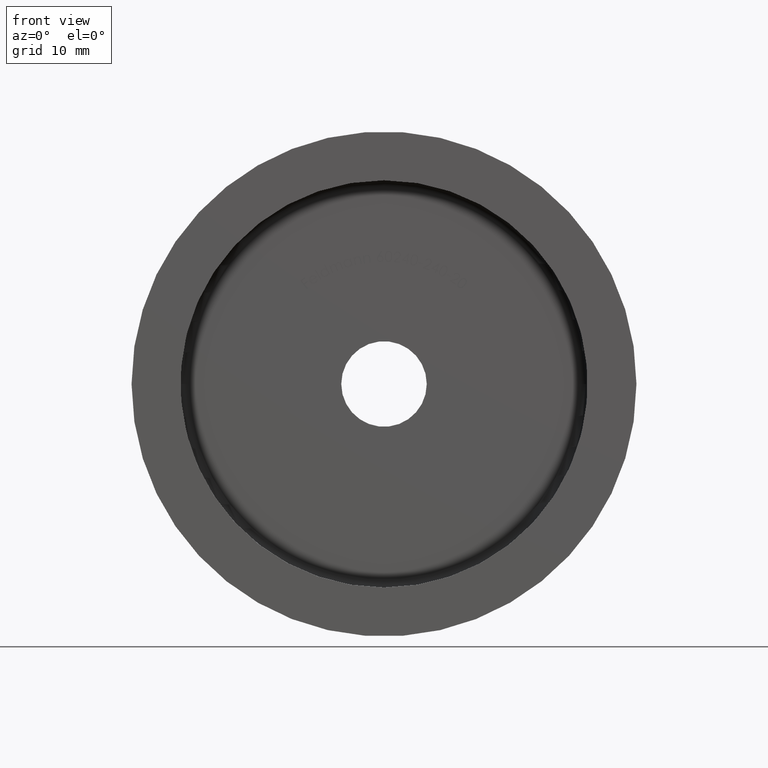
[diagram: clean part render]
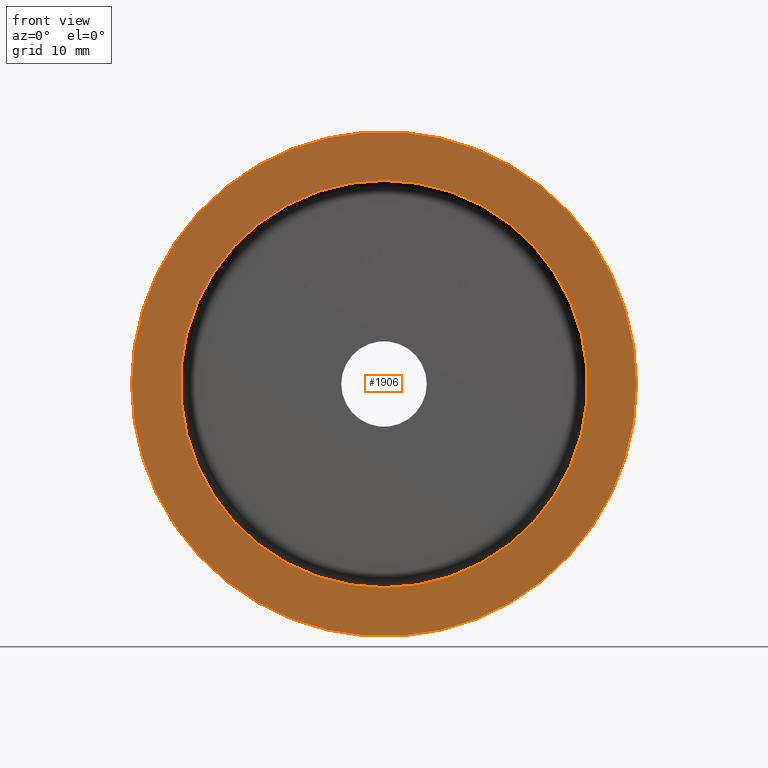
[diagram: same view with one face highlighted and labeled with its STEP entity id]
A machine part, front view. The second image highlights one B-rep face of the part: STEP entity #1906.
In plain terms, the highlighted planar face has unit normal (0, -1, 0).
Its self-contained STEP definition (entity closure, byte-faithful):
#203 = DIRECTION ( 'NONE',  ( -1.000000000000000000, -1.734723475976807341E-16, 0.000000000000000000 ) ) ;
#551 = DIRECTION ( 'NONE',  ( 1.000000000000000000, 1.734723475976807341E-16, 0.000000000000000000 ) ) ;
#782 = DIRECTION ( 'NONE',  ( 0.000000000000000000, -1.000000000000000000, 0.000000000000000000 ) ) ;
#958 = EDGE_CURVE ( 'NONE', #11671, #11728, #12291, .T. ) ;
#1256 = DIRECTION ( 'NONE',  ( -1.000000000000000000, -1.734723475976807341E-16, 0.000000000000000000 ) ) ;
#1379 = AXIS2_PLACEMENT_3D ( 'NONE', #5149, #5351, #6313 ) ;
#1906 = ADVANCED_FACE ( 'NONE', ( #2254, #13742 ), #11956, .T. ) ;
#2144 = CARTESIAN_POINT ( 'NONE',  ( 3.061616997868383043E-15, 0.000000000000000000, 25.00000000000000000 ) ) ;
#2254 = FACE_BOUND ( 'NONE', #10953, .T. ) ;
#2776 = CIRCLE ( 'NONE', #13562, 25.00000000000000000 ) ;
#5022 = VERTEX_POINT ( 'NONE', #14761 ) ;
#5149 = CARTESIAN_POINT ( 'NONE',  ( 0.000000000000000000, 0.000000000000000000, 0.000000000000000000 ) ) ;
#5351 = DIRECTION ( 'NONE',  ( 0.000000000000000000, -1.000000000000000000, 0.000000000000000000 ) ) ;
#5397 = VERTEX_POINT ( 'NONE', #9462 ) ;
#5853 = EDGE_LOOP ( 'NONE', ( #12172, #8662 ) ) ;
#6313 = DIRECTION ( 'NONE',  ( 0.000000000000000000, 0.000000000000000000, -1.000000000000000000 ) ) ;
#6910 = DIRECTION ( 'NONE',  ( -1.734723475976807341E-16, 1.000000000000000000, -0.000000000000000000 ) ) ;
#6947 = AXIS2_PLACEMENT_3D ( 'NONE', #12100, #7523, #551 ) ;
#7407 = EDGE_CURVE ( 'NONE', #5397, #5022, #12726, .T. ) ;
#7523 = DIRECTION ( 'NONE',  ( 1.734723475976807341E-16, -1.000000000000000000, 0.000000000000000000 ) ) ;
#7604 = CARTESIAN_POINT ( 'NONE',  ( 0.000000000000000000, 0.000000000000000000, 0.000000000000000000 ) ) ;
#8180 = EDGE_CURVE ( 'NONE', #5022, #5397, #9470, .T. ) ;
#8185 = CARTESIAN_POINT ( 'NONE',  ( -7.703719777548943412E-31, 3.469446951953614189E-15, 0.000000000000000000 ) ) ;
#8662 = ORIENTED_EDGE ( 'NONE', *, *, #7407, .F. ) ;
#8797 = AXIS2_PLACEMENT_3D ( 'NONE', #8185, #10514, #203 ) ;
#9462 = CARTESIAN_POINT ( 'NONE',  ( 31.00000000000000000, 8.847089727481717759E-15, 3.796405077356795115E-15 ) ) ;
#9470 = CIRCLE ( 'NONE', #8797, 31.00000000000000000 ) ;
#9881 = DIRECTION ( 'NONE',  ( 0.000000000000000000, 0.000000000000000000, -1.000000000000000000 ) ) ;
#10502 = ORIENTED_EDGE ( 'NONE', *, *, #958, .F. ) ;
#10514 = DIRECTION ( 'NONE',  ( -1.734723475976807341E-16, 1.000000000000000000, -0.000000000000000000 ) ) ;
#10953 = EDGE_LOOP ( 'NONE', ( #11621, #10502 ) ) ;
#11595 = AXIS2_PLACEMENT_3D ( 'NONE', #12637, #6910, #1256 ) ;
#11621 = ORIENTED_EDGE ( 'NONE', *, *, #13975, .F. ) ;
#11671 = VERTEX_POINT ( 'NONE', #2144 ) ;
#11728 = VERTEX_POINT ( 'NONE', #14654 ) ;
#11956 = PLANE ( 'NONE',  #6947 ) ;
#12100 = CARTESIAN_POINT ( 'NONE',  ( -8.499999999999998224, 7.037109217845178829E-17, 0.000000000000000000 ) ) ;
#12172 = ORIENTED_EDGE ( 'NONE', *, *, #8180, .F. ) ;
#12291 = CIRCLE ( 'NONE', #1379, 25.00000000000000000 ) ;
#12637 = CARTESIAN_POINT ( 'NONE',  ( -7.703719777548943412E-31, 3.469446951953614189E-15, 0.000000000000000000 ) ) ;
#12726 = CIRCLE ( 'NONE', #11595, 31.00000000000000000 ) ;
#13562 = AXIS2_PLACEMENT_3D ( 'NONE', #7604, #782, #9881 ) ;
#13742 = FACE_OUTER_BOUND ( 'NONE', #5853, .T. ) ;
#13975 = EDGE_CURVE ( 'NONE', #11728, #11671, #2776, .T. ) ;
#14654 = CARTESIAN_POINT ( 'NONE',  ( 0.000000000000000000, 0.000000000000000000, -25.00000000000000000 ) ) ;
#14761 = CARTESIAN_POINT ( 'NONE',  ( -31.00000000000000000, -1.908195823574488593E-15, 0.000000000000000000 ) ) ;